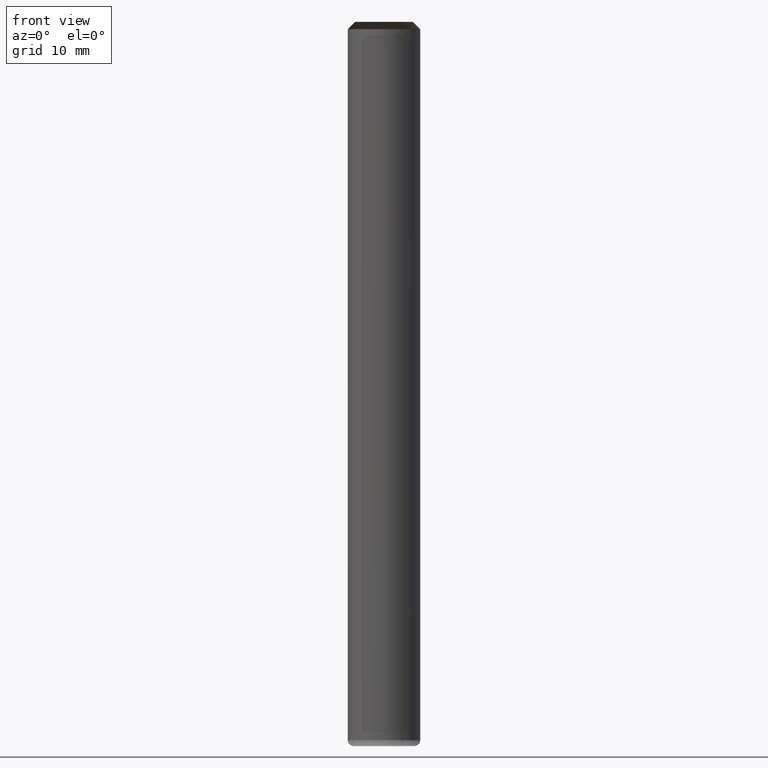
[diagram: clean part render]
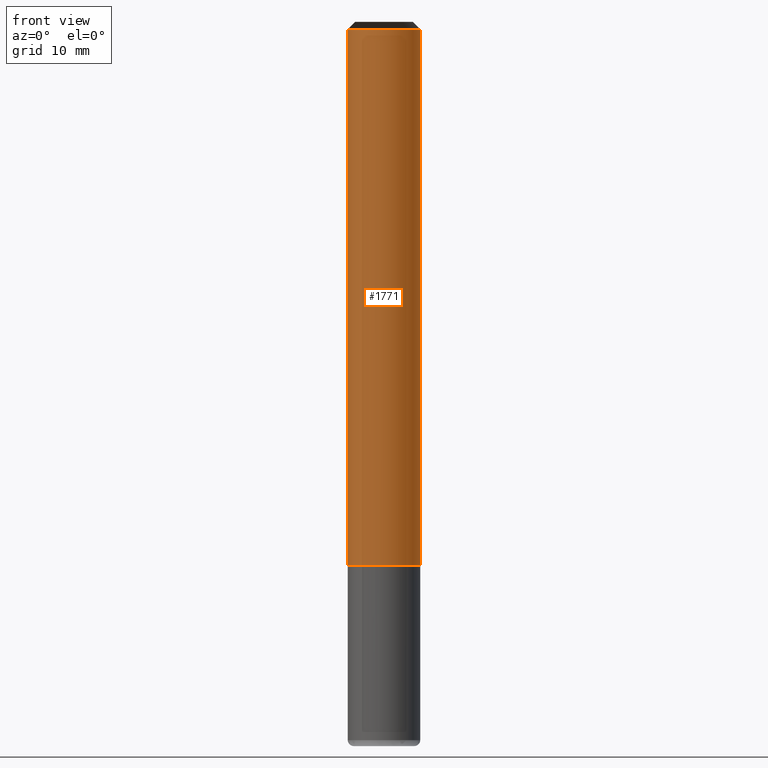
[diagram: same view with one face highlighted and labeled with its STEP entity id]
A machine part, front view. The second image highlights one B-rep face of the part: STEP entity #1771.
In plain terms, the highlighted face is a freeform B-spline surface patch.
Its self-contained STEP definition (entity closure, byte-faithful):
#1466=CARTESIAN_POINT('',(3.0,0.0,0.0));
#1470=CARTESIAN_POINT('',(-3.0,0.0,0.0));
#1487=CARTESIAN_POINT('',(-3.0,-3.0,0.0));
#1488=CARTESIAN_POINT('',(0.0,-3.0,0.0));
#1489=CARTESIAN_POINT('',(3.0,-3.0,0.0));
#1490=CARTESIAN_POINT('',(3.0,0.0,44.4));
#1494=CARTESIAN_POINT('',(-3.0,0.0,44.4));
#1501=CARTESIAN_POINT('',(-3.0,-3.0,44.4));
#1502=CARTESIAN_POINT('',(0.0,-3.0,44.4));
#1503=CARTESIAN_POINT('',(3.0,-3.0,44.4));
#1752=(
BOUNDED_SURFACE()
B_SPLINE_SURFACE(1,2,(
(#1470,#1487,#1488,#1489,#1466),
(#1494,#1501,#1502,#1503,#1490)
), .UNSPECIFIED.,.F.,.F.,.F.)
B_SPLINE_SURFACE_WITH_KNOTS((2,2),(3,2,3),(
0.0,1.0),(
0.0,0.5,1.0), .UNSPECIFIED.)
GEOMETRIC_REPRESENTATION_ITEM()
RATIONAL_B_SPLINE_SURFACE(((1.0,0.707106781187,1.0,0.707106781187,1.0),
(1.0,0.707106781187,1.0,0.707106781187,1.0)
))
REPRESENTATION_ITEM('')
SURFACE()
);
#1753=(
BOUNDED_CURVE()
B_SPLINE_CURVE(1,(#1494,#1470),.UNSPECIFIED.,.F.,.F.)
B_SPLINE_CURVE_WITH_KNOTS((2,2),
(0.0,1.0),.UNSPECIFIED.)
CURVE()
GEOMETRIC_REPRESENTATION_ITEM()
RATIONAL_B_SPLINE_CURVE((1.0,1.0))
REPRESENTATION_ITEM('')
);
#1754=(
BOUNDED_CURVE()
B_SPLINE_CURVE(2,(#1470,#1487,#1488,#1489,#1466),.UNSPECIFIED.,.F.,.F.)
B_SPLINE_CURVE_WITH_KNOTS((3,2,3),
(0.0,0.5,1.0),.UNSPECIFIED.)
CURVE()
GEOMETRIC_REPRESENTATION_ITEM()
RATIONAL_B_SPLINE_CURVE((1.0,0.707106781187,1.0,0.707106781187,1.0))
REPRESENTATION_ITEM('')
);
#1755=(
BOUNDED_CURVE()
B_SPLINE_CURVE(1,(#1466,#1490),.UNSPECIFIED.,.F.,.F.)
B_SPLINE_CURVE_WITH_KNOTS((2,2),
(0.0,1.0),.UNSPECIFIED.)
CURVE()
GEOMETRIC_REPRESENTATION_ITEM()
RATIONAL_B_SPLINE_CURVE((1.0,1.0))
REPRESENTATION_ITEM('')
);
#1756=(
BOUNDED_CURVE()
B_SPLINE_CURVE(2,(#1490,#1503,#1502,#1501,#1494),.UNSPECIFIED.,.F.,.F.)
B_SPLINE_CURVE_WITH_KNOTS((3,2,3),
(0.0,0.5,1.0),.UNSPECIFIED.)
CURVE()
GEOMETRIC_REPRESENTATION_ITEM()
RATIONAL_B_SPLINE_CURVE((1.0,0.707106781187,1.0,0.707106781187,1.0))
REPRESENTATION_ITEM('')
);
#1757=VERTEX_POINT('',#1466);
#1758=VERTEX_POINT('',#1470);
#1759=VERTEX_POINT('',#1490);
#1760=VERTEX_POINT('',#1494);
#1761=EDGE_CURVE('',#1760,#1758,#1753,.T.);
#1762=EDGE_CURVE('',#1758,#1757,#1754,.T.);
#1763=EDGE_CURVE('',#1757,#1759,#1755,.T.);
#1764=EDGE_CURVE('',#1759,#1760,#1756,.T.);
#1765=ORIENTED_EDGE('',*,*,#1761,.T.);
#1766=ORIENTED_EDGE('',*,*,#1762,.T.);
#1767=ORIENTED_EDGE('',*,*,#1763,.T.);
#1768=ORIENTED_EDGE('',*,*,#1764,.T.);
#1769=EDGE_LOOP('',(#1765,#1766,#1767,#1768));
#1770=FACE_OUTER_BOUND('',#1769,.T.);
#1771=ADVANCED_FACE('',(#1770),#1752,.T.);